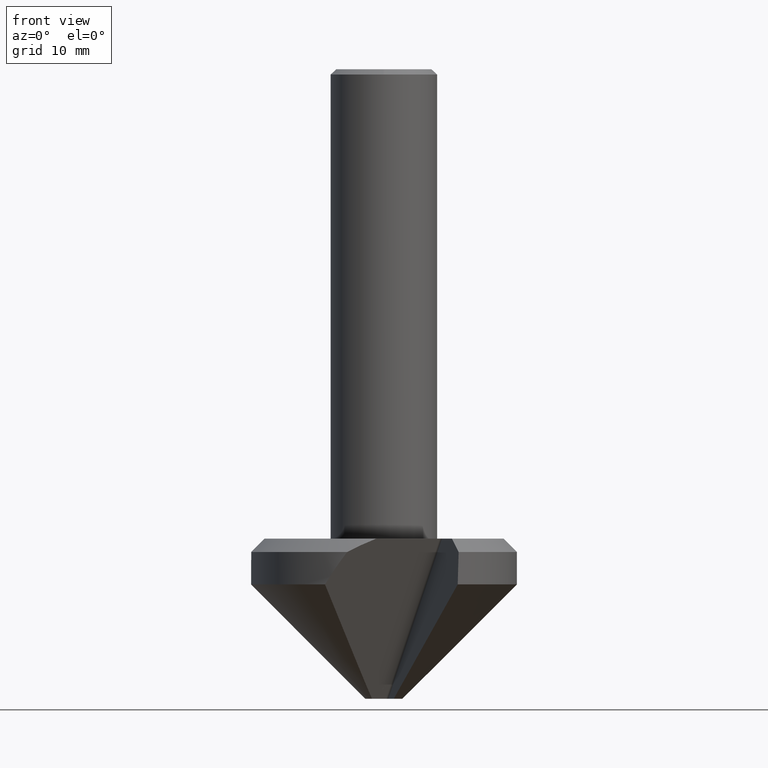
[diagram: clean part render]
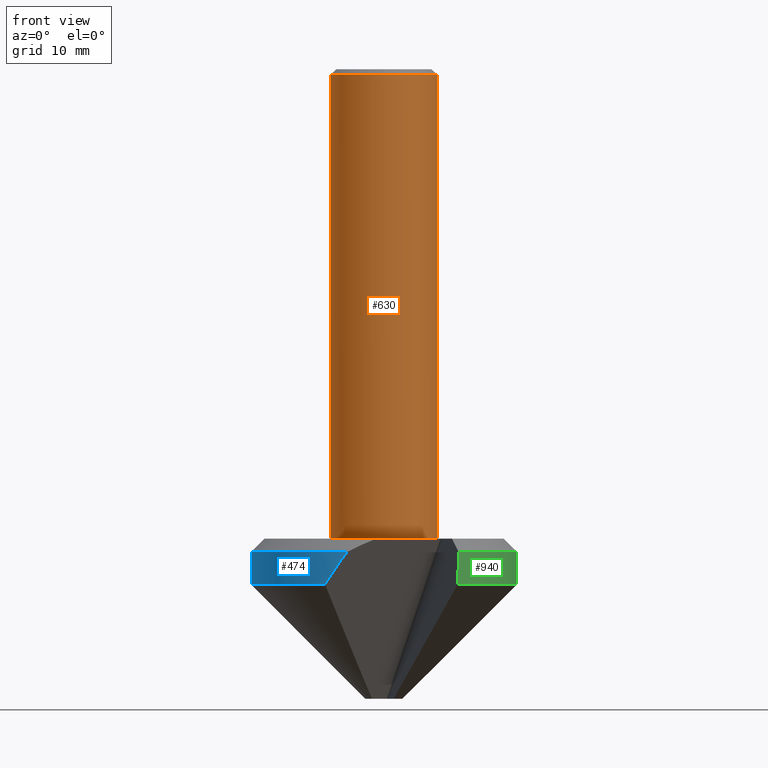
[diagram: same view with three faces highlighted in distinct colors, each labeled with its STEP entity id]
A machine part, front view with three faces highlighted in distinct colors.
Their STEP definitions:

[orange] entity #630 — the highlighted cylindrical surface (partial cylindrical patch) has radius 6 mm, axis along (-0, -0, 1).
#434=EDGE_CURVE('',#912,#884,#1196,.T.);
#470=EDGE_CURVE('',#912,#782,#1237,.T.);
#564=VERTEX_POINT('',#1336);
#588=EDGE_CURVE('',#884,#564,#1363,.T.);
#630=ADVANCED_FACE('',(#1411),#1412,.T.);
#644=VERTEX_POINT('',#1426);
#782=VERTEX_POINT('',#1572);
#884=VERTEX_POINT('',#1687);
#912=VERTEX_POINT('',#1718);
#958=EDGE_CURVE('',#564,#644,#1769,.T.);
#1000=EDGE_CURVE('',#644,#782,#1815,.T.);
#1196=LINE('',#2034,#2035);
#1237=CIRCLE('',#2088,6.0);
#1336=CARTESIAN_POINT('',(7.34763812293426E-016,-6.0,-0.600000000000001));
#1363=CIRCLE('',#2336,6.0);
#1411=FACE_OUTER_BOUND('',#2454,.T.);
#1412=CYLINDRICAL_SURFACE('',#2455,6.0);
#1426=CARTESIAN_POINT('',(-6.0,-7.34763812293426E-016,-0.600000000000001));
#1572=CARTESIAN_POINT('',(-6.0,0.0,-52.94));
#1687=CARTESIAN_POINT('',(6.0,7.34763812293426E-016,-0.600000000000001));
#1718=CARTESIAN_POINT('',(6.0,7.34763812293426E-016,-52.94));
#1769=CIRCLE('',#3302,6.0);
#1815=LINE('',#3409,#3410);
#2034=CARTESIAN_POINT('',(6.0,7.34763812293426E-016,-48.97));
#2035=VECTOR('',#3876,1.0);
#2088=AXIS2_PLACEMENT_3D('',#3938,#3939,#3940);
#2336=AXIS2_PLACEMENT_3D('',#4043,#4044,#4045);
#2454=EDGE_LOOP('',(#4130,#4131,#4132,#4133,#4134));
#2455=AXIS2_PLACEMENT_3D('',#4135,#4136,#4137);
#3302=AXIS2_PLACEMENT_3D('',#4519,#4520,#4521);
#3409=CARTESIAN_POINT('',(-6.0,-7.34763812293426E-016,-48.97));
#3410=VECTOR('',#4571,1.0);
#3876=DIRECTION('',(-0.0,-0.0,1.0));
#3938=CARTESIAN_POINT('',(0.0,0.0,-52.94));
#3939=DIRECTION('',(0.0,0.0,-1.0));
#3940=DIRECTION('',(-1.0,0.0,0.0));
#4043=CARTESIAN_POINT('',(0.0,0.0,-0.600000000000001));
#4044=DIRECTION('',(0.0,0.0,-1.0));
#4045=DIRECTION('',(0.0,1.0,0.0));
#4130=ORIENTED_EDGE('',*,*,#1000,.T.);
#4131=ORIENTED_EDGE('',*,*,#470,.F.);
#4132=ORIENTED_EDGE('',*,*,#434,.T.);
#4133=ORIENTED_EDGE('',*,*,#588,.T.);
#4134=ORIENTED_EDGE('',*,*,#958,.T.);
#4135=CARTESIAN_POINT('',(0.0,0.0,-48.97));
#4136=DIRECTION('',(-0.0,-0.0,1.0));
#4137=DIRECTION('',(-1.0,0.0,0.0));
#4519=CARTESIAN_POINT('',(0.0,0.0,-0.600000000000001));
#4520=DIRECTION('',(0.0,0.0,-1.0));
#4521=DIRECTION('',(0.0,1.0,0.0));
#4571=DIRECTION('',(0.0,0.0,-1.0));

[blue] entity #474 — the highlighted cylindrical surface (partial cylindrical patch) has radius 15 mm, axis along (-0, -0, 1).
#446=EDGE_CURVE('',#836,#714,#1208,.T.);
#474=ADVANCED_FACE('',(#1241),#1242,.T.);
#518=VERTEX_POINT('',#1287);
#536=EDGE_CURVE('',#518,#836,#1306,.T.);
#594=EDGE_CURVE('',#1052,#518,#1370,.T.);
#628=EDGE_CURVE('',#1052,#714,#1409,.T.);
#714=VERTEX_POINT('',#1501);
#836=VERTEX_POINT('',#1632);
#1052=VERTEX_POINT('',#1869);
#1208=ELLIPSE('',#2052,429.805625217573,15.0);
#1241=FACE_OUTER_BOUND('',#2093,.T.);
#1242=CYLINDRICAL_SURFACE('',#2094,15.0);
#1287=CARTESIAN_POINT('',(-4.13641572801087,-14.4183932851433,-54.44));
#1306=CIRCLE('',#2233,15.0);
#1370=ELLIPSE('',#2345,30.0183961442191,15.0);
#1409=CIRCLE('',#2452,15.0);
#1501=CARTESIAN_POINT('',(-14.9683565257174,-0.97380846115279,-58.1));
#1632=CARTESIAN_POINT('',(-14.9595102077595,-1.10138746312915,-54.44));
#1869=CARTESIAN_POINT('',(-6.63642843135118,-13.4520562619829,-58.1));
#2052=AXIS2_PLACEMENT_3D('',#3884,#3885,#3886);
#2093=EDGE_LOOP('',(#3945,#3946,#3947,#3948));
#2094=AXIS2_PLACEMENT_3D('',#3949,#3950,#3951);
#2233=AXIS2_PLACEMENT_3D('',#3991,#3992,#3993);
#2345=AXIS2_PLACEMENT_3D('',#4058,#4059,#4060);
#2452=AXIS2_PLACEMENT_3D('',#4126,#4127,#4128);
#3884=CARTESIAN_POINT('',(0.0,0.0,-71.0099999999999));
#3885=DIRECTION('',(0.0348782368720624,-0.998782025129912,-0.0348994967025078));
#3886=DIRECTION('',(-0.0012179748700881,0.0348782368720695,-0.999390827019096));
#3945=ORIENTED_EDGE('',*,*,#594,.T.);
#3946=ORIENTED_EDGE('',*,*,#536,.T.);
#3947=ORIENTED_EDGE('',*,*,#446,.T.);
#3948=ORIENTED_EDGE('',*,*,#628,.F.);
#3949=CARTESIAN_POINT('',(0.0,0.0,-56.27));
#3950=DIRECTION('',(-0.0,-0.0,1.0));
#3951=DIRECTION('',(-1.0,0.0,0.0));
#3991=CARTESIAN_POINT('',(0.0,0.0,-54.44));
#3992=DIRECTION('',(0.0,0.0,-1.0));
#3993=DIRECTION('',(-1.0,0.0,0.0));
#4058=CARTESIAN_POINT('',(0.0,0.0,-72.2231790349524));
#4059=DIRECTION('',(-0.444080941659301,0.743705881295784,0.499693585491199));
#4060=DIRECTION('',(-0.256180817519514,0.429028050500294,-0.866202240021896));
#4126=CARTESIAN_POINT('',(0.0,0.0,-58.1));
#4127=DIRECTION('',(0.0,0.0,-1.0));
#4128=DIRECTION('',(-1.0,0.0,0.0));

[green] entity #940 — the highlighted cylindrical surface (partial cylindrical patch) has radius 15 mm, axis along (-0, -0, 1).
#506=EDGE_CURVE('',#850,#828,#1275,.T.);
#554=VERTEX_POINT('',#1325);
#678=EDGE_CURVE('',#850,#696,#1461,.T.);
#696=VERTEX_POINT('',#1481);
#828=VERTEX_POINT('',#1623);
#850=VERTEX_POINT('',#1646);
#940=ADVANCED_FACE('',(#1749),#1750,.T.);
#1014=EDGE_CURVE('',#554,#696,#1829,.T.);
#1126=EDGE_CURVE('',#828,#554,#1948,.T.);
#1275=LINE('',#2168,#2169);
#1325=CARTESIAN_POINT('',(8.43358462635932,-12.4046221365278,-54.44));
#1461=CIRCLE('',#2601,15.0);
#1481=CARTESIAN_POINT('',(8.32752112863727,-12.4760727735975,-58.1));
#1623=CARTESIAN_POINT('',(15.0,1.78039856933718E-015,-54.44));
#1646=CARTESIAN_POINT('',(15.0,2.18491484048107E-015,-58.1));
#1749=FACE_OUTER_BOUND('',#3257,.T.);
#1750=CYLINDRICAL_SURFACE('',#3258,15.0);
#1829=ELLIPSE('',#3453,429.805625217573,15.0);
#1948=CIRCLE('',#3780,15.0);
#2168=CARTESIAN_POINT('',(15.0,2.18491484048107E-015,-56.27));
#2169=VECTOR('',#3973,1.0);
#2601=AXIS2_PLACEMENT_3D('',#4162,#4163,#4164);
#3257=EDGE_LOOP('',(#4497,#4498,#4499,#4500));
#3258=AXIS2_PLACEMENT_3D('',#4501,#4502,#4503);
#3453=AXIS2_PLACEMENT_3D('',#4578,#4579,#4580);
#3780=AXIS2_PLACEMENT_3D('',#4679,#4680,#4681);
#3973=DIRECTION('',(-0.0,-0.0,1.0));
#4162=CARTESIAN_POINT('',(0.0,0.0,-58.1));
#4163=DIRECTION('',(0.0,0.0,-1.0));
#4164=DIRECTION('',(-1.0,0.0,0.0));
#4497=ORIENTED_EDGE('',*,*,#506,.T.);
#4498=ORIENTED_EDGE('',*,*,#1126,.T.);
#4499=ORIENTED_EDGE('',*,*,#1014,.T.);
#4500=ORIENTED_EDGE('',*,*,#678,.F.);
#4501=CARTESIAN_POINT('',(0.0,0.0,-56.27));
#4502=DIRECTION('',(-0.0,-0.0,1.0));
#4503=DIRECTION('',(-1.0,0.0,0.0));
#4578=CARTESIAN_POINT('',(0.0,0.0,-71.0100000000001));
#4579=DIRECTION('',(0.84753148816974,0.529596451735374,-0.0348994967025078));
#4580=DIRECTION('',(-0.0295964517353792,-0.0184939156147021,-0.999390827019096));
#4679=CARTESIAN_POINT('',(0.0,0.0,-54.44));
#4680=DIRECTION('',(0.0,0.0,-1.0));
#4681=DIRECTION('',(-1.0,0.0,0.0));